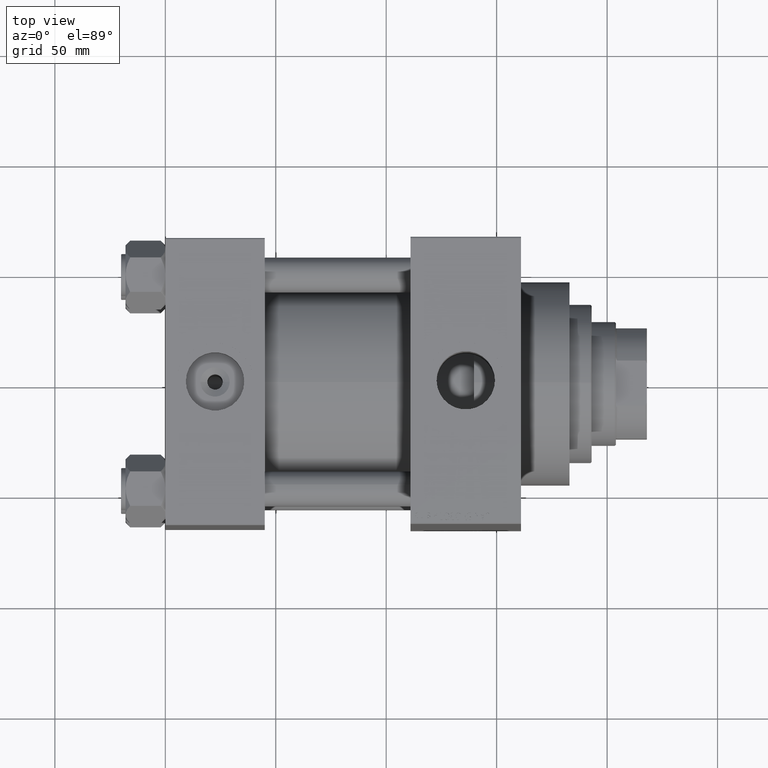
[diagram: clean part render]
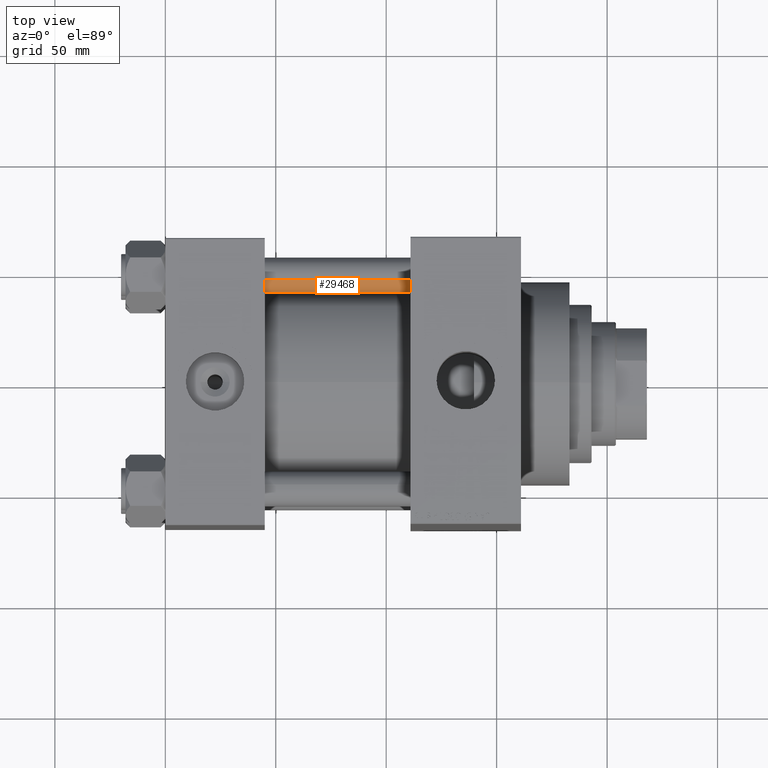
[diagram: same view with one face highlighted and labeled with its STEP entity id]
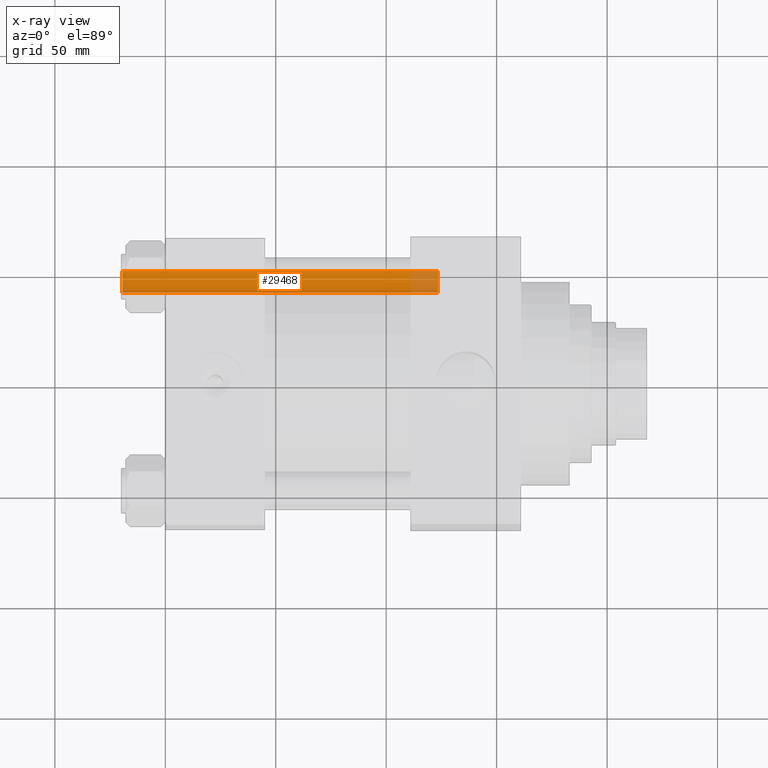
[diagram: x-ray of the same camera — body ghosted, the highlighted face saturated]
A machine part, top view. The second image highlights one B-rep face of the part: STEP entity #29468.
The next image is the same camera in x-ray: the body ghosted, the highlighted face saturated — about 9% of this face is hidden behind the body in this view.
In plain terms, the highlighted cylindrical surface (edge-blend (fillet) strip) has radius 8 mm, axis along (-1, -0, 0).
Its self-contained STEP definition (entity closure, byte-faithful):
#2220 = LINE ( 'NONE', #6534, #39869 ) ;
#2454 = DIRECTION ( 'NONE',  ( -0.000000000000000000, -0.000000000000000000, -1.000000000000000000 ) ) ;
#6260 = VECTOR ( 'NONE', #43942, 1000.000000000000000 ) ;
#6534 = CARTESIAN_POINT ( 'NONE',  ( 8.000000000000000000, 9.797174393178825657E-16, 144.0000000000000000 ) ) ;
#6572 = DIRECTION ( 'NONE',  ( -0.000000000000000000, -0.000000000000000000, -1.000000000000000000 ) ) ;
#6997 = EDGE_CURVE ( 'NONE', #29924, #15511, #2220, .T. ) ;
#7842 = VERTEX_POINT ( 'NONE', #8564 ) ;
#8564 = CARTESIAN_POINT ( 'NONE',  ( -8.000000000000000000, 0.000000000000000000, 143.5000000000000000 ) ) ;
#9228 = ORIENTED_EDGE ( 'NONE', *, *, #6997, .F. ) ;
#9719 = FACE_OUTER_BOUND ( 'NONE', #25587, .T. ) ;
#10265 = ORIENTED_EDGE ( 'NONE', *, *, #38895, .T. ) ;
#13123 = CYLINDRICAL_SURFACE ( 'NONE', #47442, 8.000000000000000000 ) ;
#14065 = CARTESIAN_POINT ( 'NONE',  ( 0.000000000000000000, 0.000000000000000000, 144.0000000000000000 ) ) ;
#14757 = ORIENTED_EDGE ( 'NONE', *, *, #17243, .T. ) ;
#15511 = VERTEX_POINT ( 'NONE', #27993 ) ;
#17243 = EDGE_CURVE ( 'NONE', #7842, #43607, #44644, .T. ) ;
#21248 = CIRCLE ( 'NONE', #28180, 8.000000000000000000 ) ;
#21293 = DIRECTION ( 'NONE',  ( -1.000000000000000000, 0.000000000000000000, 0.000000000000000000 ) ) ;
#21460 = DIRECTION ( 'NONE',  ( 0.000000000000000000, 0.000000000000000000, -1.000000000000000000 ) ) ;
#22004 = CIRCLE ( 'NONE', #45136, 8.000000000000000000 ) ;
#25587 = EDGE_LOOP ( 'NONE', ( #9228, #10265, #14757, #35046 ) ) ;
#27993 = CARTESIAN_POINT ( 'NONE',  ( 8.000000000000000000, 9.797174393178825657E-16, 0.5000000000000281997 ) ) ;
#28180 = AXIS2_PLACEMENT_3D ( 'NONE', #31919, #47345, #32161 ) ;
#29468 = ADVANCED_FACE ( 'NONE', ( #9719 ), #13123, .T. ) ;
#29678 = CARTESIAN_POINT ( 'NONE',  ( -8.000000000000000000, 0.000000000000000000, 144.0000000000000000 ) ) ;
#29924 = VERTEX_POINT ( 'NONE', #43167 ) ;
#31919 = CARTESIAN_POINT ( 'NONE',  ( 0.000000000000000000, 0.000000000000000000, 0.5000000000000281997 ) ) ;
#32161 = DIRECTION ( 'NONE',  ( 1.000000000000000000, 0.000000000000000000, 0.000000000000000000 ) ) ;
#33874 = CARTESIAN_POINT ( 'NONE',  ( -8.000000000000000000, 0.000000000000000000, 0.5000000000000281997 ) ) ;
#35046 = ORIENTED_EDGE ( 'NONE', *, *, #42980, .T. ) ;
#36669 = DIRECTION ( 'NONE',  ( 1.000000000000000000, 0.000000000000000000, 0.000000000000000000 ) ) ;
#38895 = EDGE_CURVE ( 'NONE', #29924, #7842, #22004, .T. ) ;
#39869 = VECTOR ( 'NONE', #2454, 1000.000000000000000 ) ;
#42980 = EDGE_CURVE ( 'NONE', #43607, #15511, #21248, .T. ) ;
#43167 = CARTESIAN_POINT ( 'NONE',  ( 8.000000000000000000, 9.797174393178825657E-16, 143.5000000000000000 ) ) ;
#43607 = VERTEX_POINT ( 'NONE', #33874 ) ;
#43942 = DIRECTION ( 'NONE',  ( -0.000000000000000000, -0.000000000000000000, -1.000000000000000000 ) ) ;
#44154 = CARTESIAN_POINT ( 'NONE',  ( 0.000000000000000000, 0.000000000000000000, 143.5000000000000000 ) ) ;
#44644 = LINE ( 'NONE', #29678, #6260 ) ;
#45136 = AXIS2_PLACEMENT_3D ( 'NONE', #44154, #21460, #36669 ) ;
#47345 = DIRECTION ( 'NONE',  ( -0.000000000000000000, -0.000000000000000000, 1.000000000000000000 ) ) ;
#47442 = AXIS2_PLACEMENT_3D ( 'NONE', #14065, #6572, #21293 ) ;